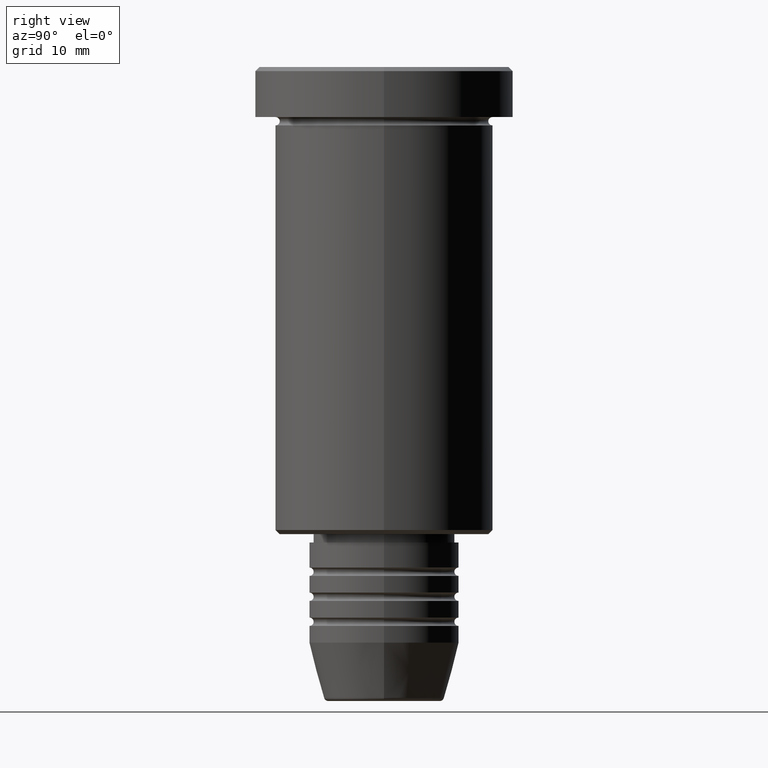
[diagram: clean part render]
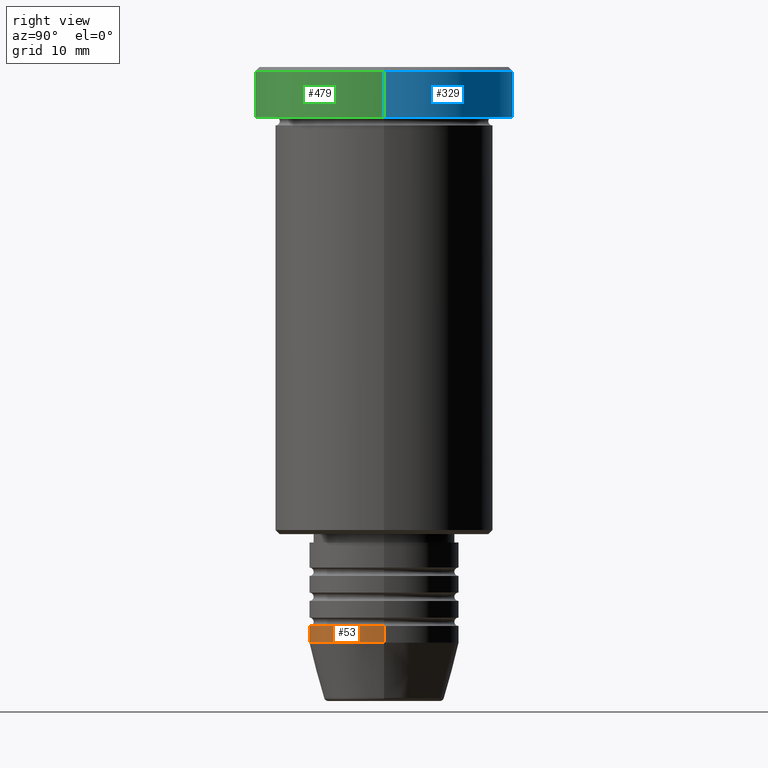
[diagram: same view with three faces highlighted in distinct colors, each labeled with its STEP entity id]
A machine part, right view with three faces highlighted in distinct colors.
Their STEP definitions:

[orange] entity #53 — the highlighted cylindrical surface (partial cylindrical patch) has radius 9 mm, axis along (-0, -0, 1).
#1 = VERTEX_POINT ( 'NONE', #1119 ) ;
#7 = DIRECTION ( 'NONE',  ( 1.000000000000000000, 0.000000000000000000, 0.000000000000000000 ) ) ;
#53 = ADVANCED_FACE ( 'NONE', ( #793 ), #242, .T. ) ;
#57 = CARTESIAN_POINT ( 'NONE',  ( -9.000000000000000000, 1.102182119232617714E-15, -69.00000000000000000 ) ) ;
#74 = DIRECTION ( 'NONE',  ( -0.000000000000000000, -0.000000000000000000, 1.000000000000000000 ) ) ;
#135 = EDGE_LOOP ( 'NONE', ( #942, #477, #903, #1031 ) ) ;
#167 = CIRCLE ( 'NONE', #761, 9.000000000000000000 ) ;
#223 = EDGE_CURVE ( 'NONE', #998, #1, #167, .T. ) ;
#242 = CYLINDRICAL_SURFACE ( 'NONE', #879, 9.000000000000000000 ) ;
#281 = VERTEX_POINT ( 'NONE', #633 ) ;
#284 = CARTESIAN_POINT ( 'NONE',  ( -9.000000000000000000, 1.102182119232617714E-15, 0.000000000000000000 ) ) ;
#294 = CARTESIAN_POINT ( 'NONE',  ( 9.000000000000000000, 0.000000000000000000, 0.000000000000000000 ) ) ;
#304 = EDGE_CURVE ( 'NONE', #998, #281, #541, .T. ) ;
#307 = CIRCLE ( 'NONE', #816, 9.000000000000000000 ) ;
#327 = DIRECTION ( 'NONE',  ( -0.000000000000000000, -0.000000000000000000, 1.000000000000000000 ) ) ;
#381 = VERTEX_POINT ( 'NONE', #749 ) ;
#444 = DIRECTION ( 'NONE',  ( -0.000000000000000000, -0.000000000000000000, 1.000000000000000000 ) ) ;
#477 = ORIENTED_EDGE ( 'NONE', *, *, #223, .T. ) ;
#541 = LINE ( 'NONE', #284, #702 ) ;
#633 = CARTESIAN_POINT ( 'NONE',  ( -9.000000000000000000, 1.102182119232617714E-15, -67.00000000000000000 ) ) ;
#635 = DIRECTION ( 'NONE',  ( 1.000000000000000000, 0.000000000000000000, 0.000000000000000000 ) ) ;
#643 = DIRECTION ( 'NONE',  ( -0.000000000000000000, -0.000000000000000000, 1.000000000000000000 ) ) ;
#702 = VECTOR ( 'NONE', #643, 1000.000000000000000 ) ;
#749 = CARTESIAN_POINT ( 'NONE',  ( 9.000000000000000000, 0.000000000000000000, -67.00000000000000000 ) ) ;
#761 = AXIS2_PLACEMENT_3D ( 'NONE', #996, #444, #7 ) ;
#793 = FACE_OUTER_BOUND ( 'NONE', #135, .T. ) ;
#816 = AXIS2_PLACEMENT_3D ( 'NONE', #970, #74, #635 ) ;
#834 = EDGE_CURVE ( 'NONE', #1, #381, #1102, .T. ) ;
#878 = CARTESIAN_POINT ( 'NONE',  ( 0.000000000000000000, 0.000000000000000000, 0.000000000000000000 ) ) ;
#879 = AXIS2_PLACEMENT_3D ( 'NONE', #878, #1152, #1160 ) ;
#903 = ORIENTED_EDGE ( 'NONE', *, *, #834, .T. ) ;
#906 = VECTOR ( 'NONE', #327, 1000.000000000000000 ) ;
#942 = ORIENTED_EDGE ( 'NONE', *, *, #304, .F. ) ;
#970 = CARTESIAN_POINT ( 'NONE',  ( 0.000000000000000000, 0.000000000000000000, -67.00000000000000000 ) ) ;
#996 = CARTESIAN_POINT ( 'NONE',  ( 0.000000000000000000, 0.000000000000000000, -69.00000000000000000 ) ) ;
#998 = VERTEX_POINT ( 'NONE', #57 ) ;
#1024 = EDGE_CURVE ( 'NONE', #281, #381, #307, .T. ) ;
#1031 = ORIENTED_EDGE ( 'NONE', *, *, #1024, .F. ) ;
#1102 = LINE ( 'NONE', #294, #906 ) ;
#1119 = CARTESIAN_POINT ( 'NONE',  ( 9.000000000000000000, 0.000000000000000000, -69.00000000000000000 ) ) ;
#1152 = DIRECTION ( 'NONE',  ( -0.000000000000000000, -0.000000000000000000, 1.000000000000000000 ) ) ;
#1160 = DIRECTION ( 'NONE',  ( 1.000000000000000000, 0.000000000000000000, 0.000000000000000000 ) ) ;

[blue] entity #329 — the highlighted cylindrical surface (partial cylindrical patch) has radius 15.5 mm, axis along (-0, -0, 1).
#9 = EDGE_CURVE ( 'NONE', #313, #228, #928, .T. ) ;
#76 = CARTESIAN_POINT ( 'NONE',  ( -15.50000000000000000, 1.898202538678397557E-15, -0.4999999999999987232 ) ) ;
#84 = CARTESIAN_POINT ( 'NONE',  ( 15.50000000000000000, 0.000000000000000000, -0.4999999999999987232 ) ) ;
#87 = VECTOR ( 'NONE', #383, 1000.000000000000000 ) ;
#169 = AXIS2_PLACEMENT_3D ( 'NONE', #1017, #578, #922 ) ;
#171 = DIRECTION ( 'NONE',  ( -0.000000000000000000, -0.000000000000000000, 1.000000000000000000 ) ) ;
#198 = ORIENTED_EDGE ( 'NONE', *, *, #937, .F. ) ;
#214 = AXIS2_PLACEMENT_3D ( 'NONE', #217, #573, #776 ) ;
#217 = CARTESIAN_POINT ( 'NONE',  ( 0.000000000000000000, 0.000000000000000000, -0.4999999999999987232 ) ) ;
#228 = VERTEX_POINT ( 'NONE', #84 ) ;
#251 = CARTESIAN_POINT ( 'NONE',  ( -15.50000000000000000, 1.898202538678397557E-15, -5.999999999999995559 ) ) ;
#261 = CARTESIAN_POINT ( 'NONE',  ( 15.50000000000000000, 0.000000000000000000, 0.000000000000000000 ) ) ;
#293 = VERTEX_POINT ( 'NONE', #551 ) ;
#313 = VERTEX_POINT ( 'NONE', #76 ) ;
#322 = EDGE_CURVE ( 'NONE', #517, #313, #637, .T. ) ;
#329 = ADVANCED_FACE ( 'NONE', ( #409 ), #392, .T. ) ;
#333 = DIRECTION ( 'NONE',  ( -0.000000000000000000, -0.000000000000000000, 1.000000000000000000 ) ) ;
#361 = VECTOR ( 'NONE', #171, 1000.000000000000000 ) ;
#383 = DIRECTION ( 'NONE',  ( -0.000000000000000000, -0.000000000000000000, 1.000000000000000000 ) ) ;
#392 = CYLINDRICAL_SURFACE ( 'NONE', #169, 15.50000000000000000 ) ;
#409 = FACE_OUTER_BOUND ( 'NONE', #1173, .T. ) ;
#510 = DIRECTION ( 'NONE',  ( 1.000000000000000000, 0.000000000000000000, 0.000000000000000000 ) ) ;
#517 = VERTEX_POINT ( 'NONE', #251 ) ;
#526 = CIRCLE ( 'NONE', #1129, 15.50000000000000000 ) ;
#551 = CARTESIAN_POINT ( 'NONE',  ( 15.50000000000000000, 0.000000000000000000, -5.999999999999995559 ) ) ;
#573 = DIRECTION ( 'NONE',  ( 0.000000000000000000, 0.000000000000000000, -1.000000000000000000 ) ) ;
#578 = DIRECTION ( 'NONE',  ( -0.000000000000000000, -0.000000000000000000, 1.000000000000000000 ) ) ;
#637 = LINE ( 'NONE', #1084, #87 ) ;
#776 = DIRECTION ( 'NONE',  ( 1.000000000000000000, 0.000000000000000000, 0.000000000000000000 ) ) ;
#818 = ORIENTED_EDGE ( 'NONE', *, *, #9, .T. ) ;
#893 = EDGE_CURVE ( 'NONE', #293, #517, #526, .T. ) ;
#922 = DIRECTION ( 'NONE',  ( 1.000000000000000000, 0.000000000000000000, 0.000000000000000000 ) ) ;
#928 = CIRCLE ( 'NONE', #214, 15.50000000000000000 ) ;
#937 = EDGE_CURVE ( 'NONE', #293, #228, #1169, .T. ) ;
#997 = ORIENTED_EDGE ( 'NONE', *, *, #322, .T. ) ;
#1017 = CARTESIAN_POINT ( 'NONE',  ( 0.000000000000000000, 0.000000000000000000, 0.000000000000000000 ) ) ;
#1047 = CARTESIAN_POINT ( 'NONE',  ( 0.000000000000000000, 0.000000000000000000, -5.999999999999995559 ) ) ;
#1084 = CARTESIAN_POINT ( 'NONE',  ( -15.50000000000000000, 1.898202538678397557E-15, 0.000000000000000000 ) ) ;
#1129 = AXIS2_PLACEMENT_3D ( 'NONE', #1047, #333, #510 ) ;
#1137 = ORIENTED_EDGE ( 'NONE', *, *, #893, .T. ) ;
#1169 = LINE ( 'NONE', #261, #361 ) ;
#1173 = EDGE_LOOP ( 'NONE', ( #1137, #997, #818, #198 ) ) ;

[green] entity #479 — the highlighted cylindrical surface (partial cylindrical patch) has radius 15.5 mm, axis along (-0, -0, 1).
#35 = EDGE_CURVE ( 'NONE', #517, #293, #66, .T. ) ;
#59 = AXIS2_PLACEMENT_3D ( 'NONE', #505, #1012, #856 ) ;
#66 = CIRCLE ( 'NONE', #365, 15.50000000000000000 ) ;
#76 = CARTESIAN_POINT ( 'NONE',  ( -15.50000000000000000, 1.898202538678397557E-15, -0.4999999999999987232 ) ) ;
#84 = CARTESIAN_POINT ( 'NONE',  ( 15.50000000000000000, 0.000000000000000000, -0.4999999999999987232 ) ) ;
#87 = VECTOR ( 'NONE', #383, 1000.000000000000000 ) ;
#142 = DIRECTION ( 'NONE',  ( 1.000000000000000000, 0.000000000000000000, 0.000000000000000000 ) ) ;
#156 = DIRECTION ( 'NONE',  ( 1.000000000000000000, 0.000000000000000000, 0.000000000000000000 ) ) ;
#171 = DIRECTION ( 'NONE',  ( -0.000000000000000000, -0.000000000000000000, 1.000000000000000000 ) ) ;
#191 = ORIENTED_EDGE ( 'NONE', *, *, #322, .F. ) ;
#210 = ORIENTED_EDGE ( 'NONE', *, *, #35, .T. ) ;
#227 = ORIENTED_EDGE ( 'NONE', *, *, #937, .T. ) ;
#228 = VERTEX_POINT ( 'NONE', #84 ) ;
#251 = CARTESIAN_POINT ( 'NONE',  ( -15.50000000000000000, 1.898202538678397557E-15, -5.999999999999995559 ) ) ;
#261 = CARTESIAN_POINT ( 'NONE',  ( 15.50000000000000000, 0.000000000000000000, 0.000000000000000000 ) ) ;
#293 = VERTEX_POINT ( 'NONE', #551 ) ;
#313 = VERTEX_POINT ( 'NONE', #76 ) ;
#322 = EDGE_CURVE ( 'NONE', #517, #313, #637, .T. ) ;
#346 = CARTESIAN_POINT ( 'NONE',  ( 0.000000000000000000, 0.000000000000000000, 0.000000000000000000 ) ) ;
#361 = VECTOR ( 'NONE', #171, 1000.000000000000000 ) ;
#365 = AXIS2_PLACEMENT_3D ( 'NONE', #1066, #518, #142 ) ;
#383 = DIRECTION ( 'NONE',  ( -0.000000000000000000, -0.000000000000000000, 1.000000000000000000 ) ) ;
#422 = CYLINDRICAL_SURFACE ( 'NONE', #1141, 15.50000000000000000 ) ;
#479 = ADVANCED_FACE ( 'NONE', ( #694 ), #422, .T. ) ;
#505 = CARTESIAN_POINT ( 'NONE',  ( 0.000000000000000000, 0.000000000000000000, -0.4999999999999987232 ) ) ;
#517 = VERTEX_POINT ( 'NONE', #251 ) ;
#518 = DIRECTION ( 'NONE',  ( -0.000000000000000000, -0.000000000000000000, 1.000000000000000000 ) ) ;
#551 = CARTESIAN_POINT ( 'NONE',  ( 15.50000000000000000, 0.000000000000000000, -5.999999999999995559 ) ) ;
#637 = LINE ( 'NONE', #1084, #87 ) ;
#678 = CIRCLE ( 'NONE', #59, 15.50000000000000000 ) ;
#694 = FACE_OUTER_BOUND ( 'NONE', #1014, .T. ) ;
#724 = ORIENTED_EDGE ( 'NONE', *, *, #829, .T. ) ;
#829 = EDGE_CURVE ( 'NONE', #228, #313, #678, .T. ) ;
#856 = DIRECTION ( 'NONE',  ( 1.000000000000000000, 0.000000000000000000, 0.000000000000000000 ) ) ;
#937 = EDGE_CURVE ( 'NONE', #293, #228, #1169, .T. ) ;
#1012 = DIRECTION ( 'NONE',  ( 0.000000000000000000, 0.000000000000000000, -1.000000000000000000 ) ) ;
#1014 = EDGE_LOOP ( 'NONE', ( #191, #210, #227, #724 ) ) ;
#1066 = CARTESIAN_POINT ( 'NONE',  ( 0.000000000000000000, 0.000000000000000000, -5.999999999999995559 ) ) ;
#1084 = CARTESIAN_POINT ( 'NONE',  ( -15.50000000000000000, 1.898202538678397557E-15, 0.000000000000000000 ) ) ;
#1141 = AXIS2_PLACEMENT_3D ( 'NONE', #346, #1149, #156 ) ;
#1149 = DIRECTION ( 'NONE',  ( -0.000000000000000000, -0.000000000000000000, 1.000000000000000000 ) ) ;
#1169 = LINE ( 'NONE', #261, #361 ) ;